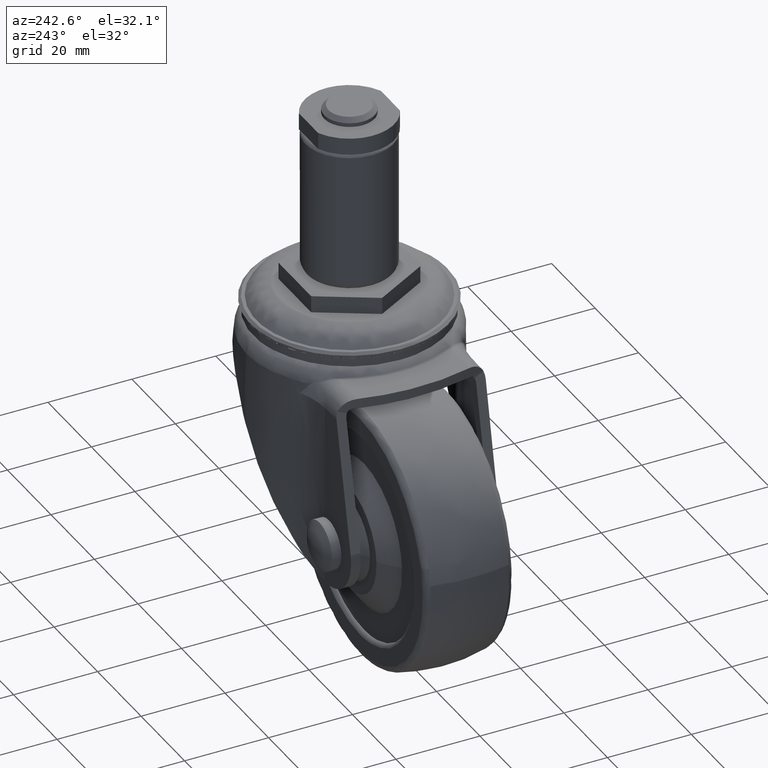
[diagram: clean part render]
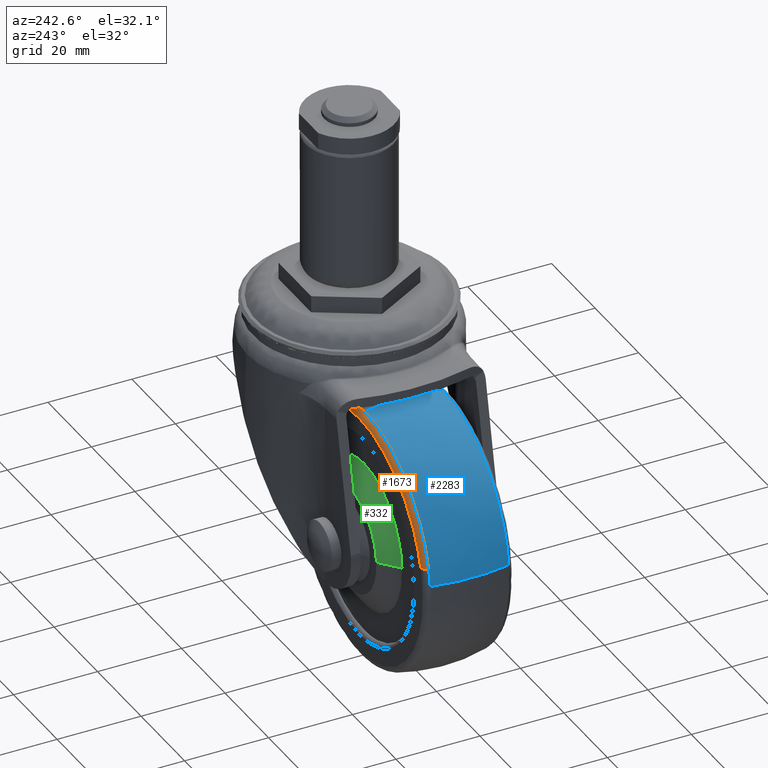
[diagram: same view with three faces highlighted in distinct colors, each labeled with its STEP entity id]
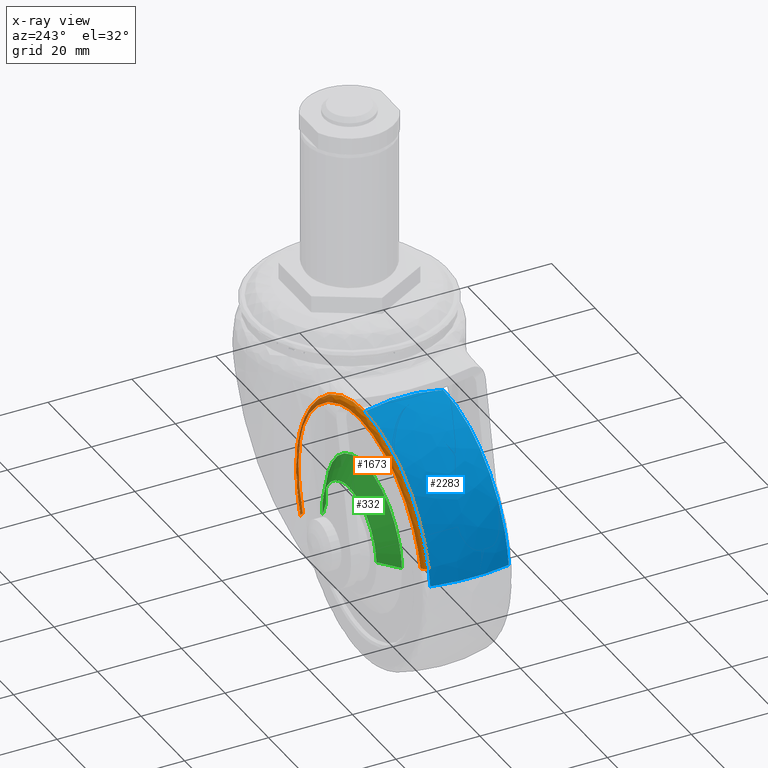
[diagram: x-ray of the same camera — body ghosted, the three highlighted faces saturated]
A machine part, auxiliary view with three faces highlighted in distinct colors.
The next image is the same camera in x-ray (body ghosted, the three faces saturated) — at least one of them is partly hidden behind the body in this view.
Their STEP definitions:

[orange] entity #1673 — the highlighted face is a freeform B-spline surface patch.
#1548=CARTESIAN_POINT('',(1.920412501386537,10.497192479667863,-60.850267116624408));
#1549=CARTESIAN_POINT('',(2.519953927431980,10.497192479667856,-59.290881425654341));
#1550=CARTESIAN_POINT('',(2.935432319287038,10.497192479667861,-57.672699927599126));
#1551=CARTESIAN_POINT('',(10.108032246886156,10.497192479667861,-29.737267608312074));
#1552=CARTESIAN_POINT('',(-17.827400072400884,10.497192479667861,-22.564667680712962));
#1553=CARTESIAN_POINT('',(-45.762832391687915,10.497192479667861,-15.392067753113842));
#1554=CARTESIAN_POINT('',(-52.935432319287038,10.497192479667861,-43.327500072400873));
#1555=CARTESIAN_POINT('',(3.167492481304102,10.579052569024787,-61.329735482841997));
#1556=CARTESIAN_POINT('',(3.794807482866412,10.579052569024780,-59.698111720628447));
#1557=CARTESIAN_POINT('',(4.229532785761340,10.579052569024784,-58.004968453321254));
#1558=CARTESIAN_POINT('',(11.734401239082578,10.579052569024784,-28.775435667559911));
#1559=CARTESIAN_POINT('',(-17.495131546678770,10.579052569024784,-21.270567214238660));
#1560=CARTESIAN_POINT('',(-46.724664332440092,10.579052569024784,-13.765698760917420));
#1561=CARTESIAN_POINT('',(-54.229532785761336,10.579052569024784,-42.995231546678745));
#1562=CARTESIAN_POINT('',(3.384783133676647,9.260870141348757,-61.413277834387323));
#1563=CARTESIAN_POINT('',(4.016937390491197,9.260870141348757,-59.769067343271566));
#1564=CARTESIAN_POINT('',(4.455016266471540,9.260870141348757,-58.062862771151437));
#1565=CARTESIAN_POINT('',(12.017779037622974,9.260870141348756,-28.607846504679902));
#1566=CARTESIAN_POINT('',(-17.437237228848559,9.260870141348757,-21.045083733528465));
#1567=CARTESIAN_POINT('',(-46.892253495320091,9.260870141348756,-13.482320962377026));
#1568=CARTESIAN_POINT('',(-54.455016266471546,9.260870141348757,-42.937337228848563));
#1576=(BOUNDED_SURFACE()B_SPLINE_SURFACE(2,2,((#1548,#1555,#1562),(#1549,#1556,#1563),(#1550,#1557,#1564),(#1551,#1558,#1565),(#1552,#1559,#1566),(#1553,#1560,#1567),(#1554,#1561,#1568)),.UNSPECIFIED.,.F.,.F.,.U.)B_SPLINE_SURFACE_WITH_KNOTS((3,2,2,3),(3,3),(0.0,4.030846232862604,54.416472195122552,104.802098157382500),(0.0,2.287897173733756),.UNSPECIFIED.)GEOMETRIC_REPRESENTATION_ITEM()RATIONAL_B_SPLINE_SURFACE(((0.874930267475275,0.653140126899955,0.875853632829702),(0.892926907266891,0.666574714814244,0.893869265533436),(0.914351474555564,0.682568268949798,0.915316443427666),(0.646544128046158,0.482648651597165,0.647226464079256),(0.914351474555564,0.682568268949798,0.915316443427666),(0.646544128046158,0.482648651597165,0.647226464079256),(0.914351474555564,0.682568268949798,0.915316443427666)))REPRESENTATION_ITEM('')SURFACE());
#1577=CARTESIAN_POINT('',(2.006032669789157,10.500000000000000,-60.883189240165407));
#1578=VERTEX_POINT('',#1577);
#1579=CARTESIAN_POINT('',(-25.0,10.500000000000000,-21.566826031510399));
#1580=VERTEX_POINT('',#1579);
#1581=CARTESIAN_POINT('',(2.006032669789156,10.500000000000000,-60.883189240165400));
#1582=CARTESIAN_POINT('',(3.933273968489598,10.500000000000000,-55.870505599595752));
#1583=CARTESIAN_POINT('',(3.933273968489599,10.500000000000000,-50.500100000000003));
#1584=CARTESIAN_POINT('',(3.933273968489599,10.500000000000000,-21.566826031510399));
#1585=CARTESIAN_POINT('',(-25.0,10.500000000000000,-21.566826031510399));
#1593=(BOUNDED_CURVE()B_SPLINE_CURVE(2,(#1581,#1582,#1583,#1584,#1585),.UNSPECIFIED.,.F.,.U.)B_SPLINE_CURVE_WITH_KNOTS((3,2,3),(0.189060941090304,0.250000000000000,0.500000000000000),.UNSPECIFIED.)CURVE()GEOMETRIC_REPRESENTATION_ITEM()RATIONAL_B_SPLINE_CURVE((0.892016635832313,0.928605451537906,1.0,0.707106781186547,1.0))REPRESENTATION_ITEM(''));
#1594=EDGE_CURVE('',#1578,#1580,#1593,.T.);
#1595=ORIENTED_EDGE('',*,*,#1594,.T.);
#1596=CARTESIAN_POINT('',(-53.024281971779828,10.500000000000000,-43.304687358805417));
#1597=VERTEX_POINT('',#1596);
#1598=CARTESIAN_POINT('',(-25.0,10.500000000000000,-21.566826031510399));
#1599=CARTESIAN_POINT('',(-47.442947804629867,10.500000000000000,-21.566826031510391));
#1600=CARTESIAN_POINT('',(-53.024281971779828,10.500000000000000,-43.304687358805417));
#1608=(BOUNDED_CURVE()B_SPLINE_CURVE(2,(#1598,#1599,#1600),.UNSPECIFIED.,.F.,.U.)B_SPLINE_CURVE_WITH_KNOTS((3,3),(0.500000000000000,0.707556761754633),.UNSPECIFIED.)CURVE()GEOMETRIC_REPRESENTATION_ITEM()RATIONAL_B_SPLINE_CURVE((1.0,0.756832127852755,0.917433344550683))REPRESENTATION_ITEM(''));
#1609=EDGE_CURVE('',#1580,#1597,#1608,.T.);
#1610=ORIENTED_EDGE('',*,*,#1609,.T.);
#1611=CARTESIAN_POINT('',(-54.436904683922862,9.350635503199349,-42.941987492855418));
#1612=VERTEX_POINT('',#1611);
#1613=CARTESIAN_POINT('',(-53.024281971779828,10.500000000000000,-43.304687358805417));
#1614=CARTESIAN_POINT('',(-54.169258546040247,10.499999984332616,-43.010707341093479));
#1615=CARTESIAN_POINT('',(-54.436904683922855,9.350635503199349,-42.941987492855425));
#1623=(BOUNDED_CURVE()B_SPLINE_CURVE(2,(#1613,#1614,#1615),.UNSPECIFIED.,.F.,.U.)B_SPLINE_CURVE_WITH_KNOTS((3,3),(-1.688983776186819,-0.307868874097458),.UNSPECIFIED.)CURVE()GEOMETRIC_REPRESENTATION_ITEM()RATIONAL_B_SPLINE_CURVE((0.894257158932086,0.702707554482398,0.895132177494131))REPRESENTATION_ITEM(''));
#1624=EDGE_CURVE('',#1597,#1612,#1623,.T.);
#1625=ORIENTED_EDGE('',*,*,#1624,.T.);
#1626=CARTESIAN_POINT('',(-25.0,9.350623064382614,-20.108380466054150));
#1627=VERTEX_POINT('',#1626);
#1628=CARTESIAN_POINT('',(-25.0,9.350623064382614,-20.108380466054150));
#1629=CARTESIAN_POINT('',(-48.574230666150420,9.350628934173081,-20.108383063729587));
#1630=CARTESIAN_POINT('',(-54.436904683922862,9.350635503199349,-42.941987492855418));
#1638=(BOUNDED_CURVE()B_SPLINE_CURVE(2,(#1628,#1629,#1630),.UNSPECIFIED.,.F.,.U.)B_SPLINE_CURVE_WITH_KNOTS((3,3),(0.500000000000000,0.707556762343379),.UNSPECIFIED.)CURVE()GEOMETRIC_REPRESENTATION_ITEM()RATIONAL_B_SPLINE_CURVE((1.0,0.756832127162995,0.917433345461793))REPRESENTATION_ITEM(''));
#1639=EDGE_CURVE('',#1627,#1612,#1638,.T.);
#1640=ORIENTED_EDGE('',*,*,#1639,.F.);
#1641=CARTESIAN_POINT('',(3.367326015496355,9.350641237134727,-61.406569718239680));
#1642=VERTEX_POINT('',#1641);
#1643=CARTESIAN_POINT('',(3.367326015496355,9.350641237134727,-61.406569718239680));
#1644=CARTESIAN_POINT('',(5.391714351152507,9.350638940134219,-56.141210421641645));
#1645=CARTESIAN_POINT('',(5.391714238432809,9.350636471539788,-50.500097233895453));
#1646=CARTESIAN_POINT('',(5.391713631151045,9.350623171891312,-20.108380626431600));
#1647=CARTESIAN_POINT('',(-25.0,9.350623064382614,-20.108380466054150));
#1655=(BOUNDED_CURVE()B_SPLINE_CURVE(2,(#1643,#1644,#1645,#1646,#1647),.UNSPECIFIED.,.F.,.U.)B_SPLINE_CURVE_WITH_KNOTS((3,2,3),(0.189060931279049,0.250000000000000,0.500000000000000),.UNSPECIFIED.)CURVE()GEOMETRIC_REPRESENTATION_ITEM()RATIONAL_B_SPLINE_CURVE((0.892016624050637,0.928605440043307,1.0,0.707106781186548,1.0))REPRESENTATION_ITEM(''));
#1656=EDGE_CURVE('',#1642,#1627,#1655,.T.);
#1657=ORIENTED_EDGE('',*,*,#1656,.F.);
#1658=CARTESIAN_POINT('',(2.006032669789156,10.500000000000002,-60.883189240165393));
#1659=CARTESIAN_POINT('',(3.109401776983717,10.499999838252707,-61.307404823566763));
#1660=CARTESIAN_POINT('',(3.367326015496356,9.350641237134727,-61.406569718239695));
#1668=(BOUNDED_CURVE()B_SPLINE_CURVE(2,(#1658,#1659,#1660),.UNSPECIFIED.,.F.,.U.)B_SPLINE_CURVE_WITH_KNOTS((3,3),(-1.688983785948672,-0.307873466376213),.UNSPECIFIED.)CURVE()GEOMETRIC_REPRESENTATION_ITEM()RATIONAL_B_SPLINE_CURVE((0.855702264065770,0.672411712183099,0.856538330120658))REPRESENTATION_ITEM(''));
#1669=EDGE_CURVE('',#1578,#1642,#1668,.T.);
#1670=ORIENTED_EDGE('',*,*,#1669,.F.);
#1671=EDGE_LOOP('',(#1595,#1610,#1625,#1640,#1657,#1670));
#1672=FACE_OUTER_BOUND('',#1671,.T.);
#1673=ADVANCED_FACE('',(#1672),#1576,.T.);

[blue] entity #2283 — the highlighted face is a freeform B-spline surface patch.
#1611=CARTESIAN_POINT('',(-54.436904683922862,9.350635503199349,-42.941987492855418));
#1612=VERTEX_POINT('',#1611);
#1626=CARTESIAN_POINT('',(-25.0,9.350623064382614,-20.108380466054150));
#1627=VERTEX_POINT('',#1626);
#1628=CARTESIAN_POINT('',(-25.0,9.350623064382614,-20.108380466054150));
#1629=CARTESIAN_POINT('',(-48.574230666150420,9.350628934173081,-20.108383063729587));
#1630=CARTESIAN_POINT('',(-54.436904683922862,9.350635503199349,-42.941987492855418));
#1638=(BOUNDED_CURVE()B_SPLINE_CURVE(2,(#1628,#1629,#1630),.UNSPECIFIED.,.F.,.U.)B_SPLINE_CURVE_WITH_KNOTS((3,3),(0.500000000000000,0.707556762343379),.UNSPECIFIED.)CURVE()GEOMETRIC_REPRESENTATION_ITEM()RATIONAL_B_SPLINE_CURVE((1.0,0.756832127162995,0.917433345461793))REPRESENTATION_ITEM(''));
#1639=EDGE_CURVE('',#1627,#1612,#1638,.T.);
#1728=CARTESIAN_POINT('',(-55.188447871357702,9.350636541606473,-46.990964153061292));
#1729=VERTEX_POINT('',#1728);
#1745=CARTESIAN_POINT('',(-54.436904683922862,9.350635503199348,-42.941987492855425));
#1746=CARTESIAN_POINT('',(-54.950153024647555,9.350636027734916,-44.940958354309409));
#1747=CARTESIAN_POINT('',(-55.188447871357681,9.350636541606473,-46.990964153061299));
#1755=(BOUNDED_CURVE()B_SPLINE_CURVE(2,(#1745,#1746,#1747),.UNSPECIFIED.,.F.,.U.)B_SPLINE_CURVE_WITH_KNOTS((3,3),(0.707556762343379,0.730000113482887),.UNSPECIFIED.)CURVE()GEOMETRIC_REPRESENTATION_ITEM()RATIONAL_B_SPLINE_CURVE((0.917433345461793,0.934799339684373,0.956886341552614))REPRESENTATION_ITEM(''));
#1756=EDGE_CURVE('',#1612,#1729,#1755,.T.);
#1958=CARTESIAN_POINT('',(-25.0,-9.350638058317191,-20.108384071001119));
#1959=VERTEX_POINT('',#1958);
#1973=CARTESIAN_POINT('',(-55.188446997482117,-9.350640219503262,-46.990964293674068));
#1974=VERTEX_POINT('',#1973);
#1975=CARTESIAN_POINT('',(-25.0,-9.350638058317191,-20.108384071001119));
#1976=CARTESIAN_POINT('',(-52.063587794771358,-9.350639138910227,-20.108385301750232));
#1977=CARTESIAN_POINT('',(-55.188446997482117,-9.350640219503262,-46.990964293674068));
#1985=(BOUNDED_CURVE()B_SPLINE_CURVE(2,(#1975,#1976,#1977),.UNSPECIFIED.,.F.,.U.)B_SPLINE_CURVE_WITH_KNOTS((3,3),(0.500000000000000,0.730000113698683),.UNSPECIFIED.)CURVE()GEOMETRIC_REPRESENTATION_ITEM()RATIONAL_B_SPLINE_CURVE((1.0,0.730538105485331,0.956886341977353))REPRESENTATION_ITEM(''));
#1986=EDGE_CURVE('',#1959,#1974,#1985,.T.);
#2216=CARTESIAN_POINT('',(-25.0,-9.350638058317191,-20.108384071001122));
#2217=CARTESIAN_POINT('',(-25.000000000000004,-4.740998695849479,-19.000100000000003));
#2218=CARTESIAN_POINT('',(-25.0,7.715038E-015,-19.000100000000000));
#2219=CARTESIAN_POINT('',(-25.0,4.740990876924810,-19.000099999999996));
#2220=CARTESIAN_POINT('',(-25.0,9.350623064382614,-20.108380466054150));
#2228=(BOUNDED_CURVE()B_SPLINE_CURVE(2,(#2216,#2217,#2218,#2219,#2220),.UNSPECIFIED.,.F.,.U.)B_SPLINE_CURVE_WITH_KNOTS((3,2,3),(0.409347711942875,0.500000000000000,0.590652144552732),.UNSPECIFIED.)CURVE()GEOMETRIC_REPRESENTATION_ITEM()RATIONAL_B_SPLINE_CURVE((0.934279875238360,0.959862897211692,1.0,0.959862960749532,0.934279956235272))REPRESENTATION_ITEM(''));
#2229=EDGE_CURVE('',#1959,#1627,#2228,.T.);
#2235=CARTESIAN_POINT('',(-55.188446997482117,-9.350640219503262,-46.990964293674075));
#2236=CARTESIAN_POINT('',(-56.289318979312895,-4.740999822848255,-46.862997058052130));
#2237=CARTESIAN_POINT('',(-56.289318978177768,-1.113016E-013,-46.862997048288989));
#2238=CARTESIAN_POINT('',(-56.289318977042626,4.740997904925822,-46.862997038525847));
#2239=CARTESIAN_POINT('',(-55.188447871357695,9.350636541606473,-46.990964153061292));
#2247=(BOUNDED_CURVE()B_SPLINE_CURVE(2,(#2235,#2236,#2237,#2238,#2239),.UNSPECIFIED.,.F.,.U.)B_SPLINE_CURVE_WITH_KNOTS((3,2,3),(0.409347691258509,0.500000000000000,0.590652273540968),.UNSPECIFIED.)CURVE()GEOMETRIC_REPRESENTATION_ITEM()RATIONAL_B_SPLINE_CURVE((0.893999431949142,0.918479472944795,0.956886118190660,0.918479487858194,0.893999450960470))REPRESENTATION_ITEM(''));
#2248=EDGE_CURVE('',#1974,#1729,#2247,.T.);
#2253=CARTESIAN_POINT('',(-25.0,-10.296538775591827,-20.348045859983927));
#2254=CARTESIAN_POINT('',(-24.999999999999996,-5.236500883886370,-19.000100000000003));
#2255=CARTESIAN_POINT('',(-25.0,7.715038E-015,-19.000100000000000));
#2256=CARTESIAN_POINT('',(-24.999999999999996,5.236499246436608,-19.000100000000003));
#2257=CARTESIAN_POINT('',(-24.999999999999996,10.296535664372275,-20.348045031184828));
#2258=CARTESIAN_POINT('',(-51.850153974569011,-10.296538775591827,-20.348045859983923));
#2259=CARTESIAN_POINT('',(-53.050488576048735,-5.236500883886370,-19.000100000000003));
#2260=CARTESIAN_POINT('',(-53.050488576048735,7.715038E-015,-19.000100000000000));
#2261=CARTESIAN_POINT('',(-53.050488576048735,5.236499246436608,-19.000100000000003));
#2262=CARTESIAN_POINT('',(-51.850154712607733,10.296535664372277,-20.348045031184832));
#2263=CARTESIAN_POINT('',(-54.950386310555885,-10.296538775591829,-47.018616306094842));
#2264=CARTESIAN_POINT('',(-56.289316621730073,-5.236500883886371,-46.862976776197172));
#2265=CARTESIAN_POINT('',(-56.289316621730073,7.715038E-015,-46.862976776197172));
#2266=CARTESIAN_POINT('',(-56.289316621730073,5.236499246436610,-46.862976776197172));
#2267=CARTESIAN_POINT('',(-54.950387133811667,10.296535664372280,-47.018616210398186));
#2275=(BOUNDED_SURFACE()B_SPLINE_SURFACE(2,2,((#2253,#2258,#2263),(#2254,#2259,#2264),(#2255,#2260,#2265),(#2256,#2261,#2266),(#2257,#2262,#2267)),.UNSPECIFIED.,.F.,.F.,.U.)B_SPLINE_SURFACE_WITH_KNOTS((3,2,3),(3,3),(0.0,10.772092317514900,21.544181415310039),(0.0,47.962969624822023),.UNSPECIFIED.)GEOMETRIC_REPRESENTATION_ITEM()RATIONAL_B_SPLINE_SURFACE(((0.929313621277876,0.678899136080474,0.889247303646291),(0.955853187300499,0.698287303898281,0.914642645956145),(1.0,0.730538238691624,0.956886118190660),(0.955853200495741,0.698287313537910,0.914642658582488),(0.929313637142941,0.678899147670511,0.889247318827352)))REPRESENTATION_ITEM('')SURFACE());
#2276=ORIENTED_EDGE('',*,*,#1639,.T.);
#2277=ORIENTED_EDGE('',*,*,#1756,.T.);
#2278=ORIENTED_EDGE('',*,*,#2248,.F.);
#2279=ORIENTED_EDGE('',*,*,#1986,.F.);
#2280=ORIENTED_EDGE('',*,*,#2229,.T.);
#2281=EDGE_LOOP('',(#2276,#2277,#2278,#2279,#2280));
#2282=FACE_OUTER_BOUND('',#2281,.T.);
#2283=ADVANCED_FACE('',(#2282),#2275,.T.);

[green] entity #332 — the highlighted face is a freeform B-spline surface patch.
#230=CARTESIAN_POINT('',(-12.709996197604692,13.087498249481149,-51.960953248867142));
#231=CARTESIAN_POINT('',(-12.668187205247118,13.087498249481149,-51.609218620185345));
#232=CARTESIAN_POINT('',(-12.646563157526760,13.087498249481150,-51.255668565149193));
#233=CARTESIAN_POINT('',(-11.890994592377574,13.087498249481149,-38.902231722675950));
#234=CARTESIAN_POINT('',(-24.244431434850810,13.087498249481150,-38.146663157526760));
#235=CARTESIAN_POINT('',(-36.597868277324039,13.087498249481149,-37.391094592377577));
#236=CARTESIAN_POINT('',(-37.353436842473243,13.087498249481150,-49.744531434850813));
#237=CARTESIAN_POINT('',(-7.495243499388068,9.410384315035952,-52.580805654424879));
#238=CARTESIAN_POINT('',(-7.435694597490038,9.410384315035950,-52.079827043929406));
#239=CARTESIAN_POINT('',(-7.404895283186431,9.410384315035952,-51.576262706302458));
#240=CARTESIAN_POINT('',(-6.328732576883964,9.410384315035952,-33.981157989488899));
#241=CARTESIAN_POINT('',(-23.923837293697542,9.410384315035952,-32.904995283186423));
#242=CARTESIAN_POINT('',(-41.518942010511097,9.410384315035952,-31.828832576883972));
#243=CARTESIAN_POINT('',(-42.595104716813573,9.410384315035952,-49.423937293697527));
#251=(BOUNDED_SURFACE()B_SPLINE_SURFACE(2,1,((#230,#237),(#231,#238),(#232,#239),(#233,#240),(#234,#241),(#235,#242),(#236,#243)),.UNSPECIFIED.,.F.,.F.,.U.)B_SPLINE_SURFACE_WITH_KNOTS((3,2,2,3),(2,2),(0.0,1.168280038584310,30.375281003192018,59.582281967799723),(0.0,6.410852485834033),.UNSPECIFIED.)GEOMETRIC_REPRESENTATION_ITEM()RATIONAL_B_SPLINE_SURFACE(((0.977505800795127,0.977505800795127),(0.988284271247462,0.988284271247462),(1.0,1.0),(0.707106781186548,0.707106781186548),(1.0,1.0),(0.707106781186548,0.707106781186548),(1.0,1.0)))REPRESENTATION_ITEM('')SURFACE());
#252=CARTESIAN_POINT('',(-12.585909280327391,12.999999999952390,-51.975702860448507));
#253=VERTEX_POINT('',#252);
#254=CARTESIAN_POINT('',(-25.0,13.0,-37.998617999999979));
#255=VERTEX_POINT('',#254);
#256=CARTESIAN_POINT('',(-12.585909280327392,12.999999999952390,-51.975702860448514));
#257=CARTESIAN_POINT('',(-12.498517999999979,12.999999999999998,-51.240489266294681));
#258=CARTESIAN_POINT('',(-12.498517999999979,13.0,-50.500100000000003));
#259=CARTESIAN_POINT('',(-12.498517999999983,13.000000000000002,-37.998617999999986));
#260=CARTESIAN_POINT('',(-25.0,13.0,-37.998617999999979));
#268=(BOUNDED_CURVE()B_SPLINE_CURVE(2,(#256,#257,#258,#259,#260),.UNSPECIFIED.,.F.,.U.)B_SPLINE_CURVE_WITH_KNOTS((3,2,3),(0.229562473502160,0.250000000000000,0.500000000000000),.UNSPECIFIED.)CURVE()GEOMETRIC_REPRESENTATION_ITEM()RATIONAL_B_SPLINE_CURVE((0.956026754161456,0.976055948317849,1.0,0.707106781186548,1.0))REPRESENTATION_ITEM(''));
#269=EDGE_CURVE('',#253,#255,#268,.T.);
#270=ORIENTED_EDGE('',*,*,#269,.T.);
#271=CARTESIAN_POINT('',(-37.478164216088153,12.999999999946750,-49.736902781344028));
#272=VERTEX_POINT('',#271);
#273=CARTESIAN_POINT('',(-25.0,13.0,-37.998617999999979));
#274=CARTESIAN_POINT('',(-36.760219961711428,13.0,-37.998617999999993));
#275=CARTESIAN_POINT('',(-37.478164216088153,12.999999999946747,-49.736902781344035));
#283=(BOUNDED_CURVE()B_SPLINE_CURVE(2,(#273,#274,#275),.UNSPECIFIED.,.F.,.U.)B_SPLINE_CURVE_WITH_KNOTS((3,3),(0.500000000000000,0.739332962227310),.UNSPECIFIED.)CURVE()GEOMETRIC_REPRESENTATION_ITEM()RATIONAL_B_SPLINE_CURVE((1.0,0.719603993300339,0.976072041641786))REPRESENTATION_ITEM(''));
#284=EDGE_CURVE('',#255,#272,#283,.T.);
#285=ORIENTED_EDGE('',*,*,#284,.T.);
#286=CARTESIAN_POINT('',(-42.467259158933949,9.500070020716041,-49.431756662611789));
#287=VERTEX_POINT('',#286);
#288=CARTESIAN_POINT('',(-37.478164216088153,12.999999999946750,-49.736902781344028));
#289=CARTESIAN_POINT('',(-42.467259158933949,9.500070020716041,-49.431756662611789));
#290=QUASI_UNIFORM_CURVE('',1,(#288,#289),.UNSPECIFIED.,.F.,.U.);
#291=EDGE_CURVE('',#272,#287,#290,.T.);
#292=ORIENTED_EDGE('',*,*,#291,.T.);
#293=CARTESIAN_POINT('',(-25.0,9.500070020754128,-33.000200000000000));
#294=VERTEX_POINT('',#293);
#295=CARTESIAN_POINT('',(-25.0,9.500070020754128,-33.000200000000000));
#296=CARTESIAN_POINT('',(-41.462262099527599,9.500070020754128,-33.000200000000007));
#297=CARTESIAN_POINT('',(-42.467259158933949,9.500070020716041,-49.431756662611789));
#305=(BOUNDED_CURVE()B_SPLINE_CURVE(2,(#295,#296,#297),.UNSPECIFIED.,.F.,.U.)B_SPLINE_CURVE_WITH_KNOTS((3,3),(0.500000000000000,0.739332962234484),.UNSPECIFIED.)CURVE()GEOMETRIC_REPRESENTATION_ITEM()RATIONAL_B_SPLINE_CURVE((1.0,0.719603993291934,0.976072041657162))REPRESENTATION_ITEM(''));
#306=EDGE_CURVE('',#294,#287,#305,.T.);
#307=ORIENTED_EDGE('',*,*,#306,.F.);
#308=CARTESIAN_POINT('',(-7.622432589583038,9.500070020724102,-52.565687303387350));
#309=VERTEX_POINT('',#308);
#310=CARTESIAN_POINT('',(-7.622432589583038,9.500070020724102,-52.565687303387350));
#311=CARTESIAN_POINT('',(-7.500100000000002,9.500070020754128,-51.536516171812245));
#312=CARTESIAN_POINT('',(-7.500100000000002,9.500070020754128,-50.500100000000003));
#313=CARTESIAN_POINT('',(-7.500100000000004,9.500070020754130,-33.000200000000007));
#314=CARTESIAN_POINT('',(-25.0,9.500070020754128,-33.000200000000000));
#322=(BOUNDED_CURVE()B_SPLINE_CURVE(2,(#310,#311,#312,#313,#314),.UNSPECIFIED.,.F.,.U.)B_SPLINE_CURVE_WITH_KNOTS((3,2,3),(0.229562473509566,0.250000000000000,0.500000000000000),.UNSPECIFIED.)CURVE()GEOMETRIC_REPRESENTATION_ITEM()RATIONAL_B_SPLINE_CURVE((0.956026754175972,0.976055948326526,1.0,0.707106781186547,1.0))REPRESENTATION_ITEM(''));
#323=EDGE_CURVE('',#309,#294,#322,.T.);
#324=ORIENTED_EDGE('',*,*,#323,.F.);
#325=CARTESIAN_POINT('',(-12.585909280327391,12.999999999952390,-51.975702860448507));
#326=CARTESIAN_POINT('',(-7.622432589583038,9.500070020724102,-52.565687303387350));
#327=QUASI_UNIFORM_CURVE('',1,(#325,#326),.UNSPECIFIED.,.F.,.U.);
#328=EDGE_CURVE('',#253,#309,#327,.T.);
#329=ORIENTED_EDGE('',*,*,#328,.F.);
#330=EDGE_LOOP('',(#270,#285,#292,#307,#324,#329));
#331=FACE_OUTER_BOUND('',#330,.T.);
#332=ADVANCED_FACE('',(#331),#251,.T.);